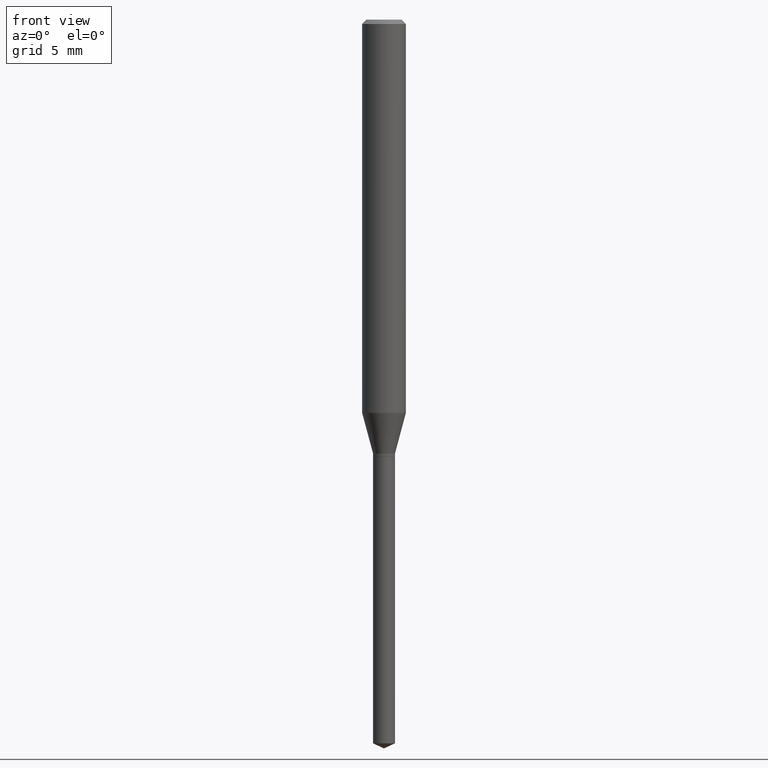
[diagram: clean part render]
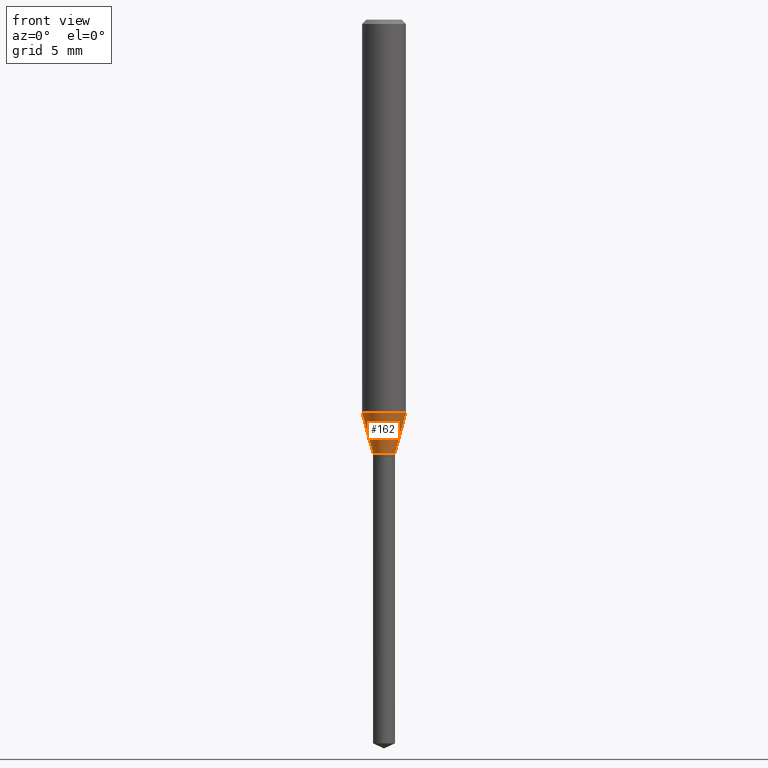
[diagram: same view with one face highlighted and labeled with its STEP entity id]
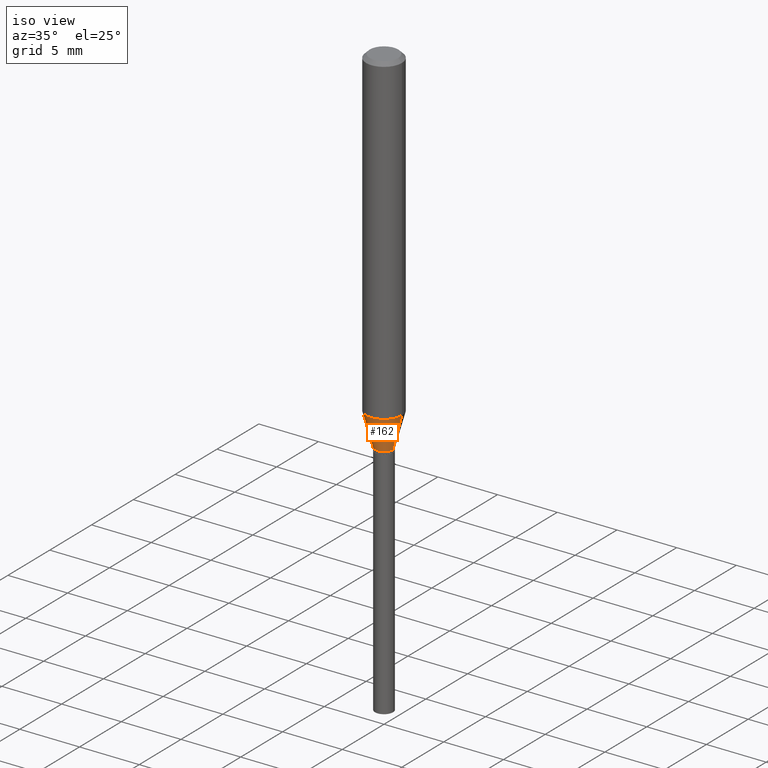
[diagram: same view with one face highlighted and labeled with its STEP entity id]
A machine part, front view. The second image highlights one B-rep face of the part: STEP entity #162.
A second angle (iso view) of the same face is appended — the face is thin or edge-on in the first view.
In plain terms, the highlighted conical surface has half-angle 15 deg.
Its self-contained STEP definition (entity closure, byte-faithful):
#3 = LINE ( 'NONE', #391, #469 ) ;
#48 = CONICAL_SURFACE ( 'NONE', #341, 0.02955000000000001029, 0.2617993877991501295 ) ;
#76 = CARTESIAN_POINT ( 'NONE',  ( 0.02955000000000001029, -4.299060972517564294E-15, -1.172199999999999909 ) ) ;
#113 = DIRECTION ( 'NONE',  ( 1.000000000000000000, -6.982962677686259611E-15, 0.000000000000000000 ) ) ;
#119 = CIRCLE ( 'NONE', #485, 0.05905000000000013710 ) ;
#120 = VERTEX_POINT ( 'NONE', #123 ) ;
#123 = CARTESIAN_POINT ( 'NONE',  ( -0.02955000000000001029, -3.897413268597965956E-15, -1.172199999999999909 ) ) ;
#147 = DIRECTION ( 'NONE',  ( -2.445468806185136597E-29, 3.491481338843145583E-15, 1.000000000000000000 ) ) ;
#162 = ADVANCED_FACE ( 'NONE', ( #340 ), #48, .T. ) ;
#170 = ORIENTED_EDGE ( 'NONE', *, *, #256, .F. ) ;
#177 = EDGE_LOOP ( 'NONE', ( #170, #254, #247, #394 ) ) ;
#185 = DIRECTION ( 'NONE',  ( 1.000000000000000000, -6.982962677686259611E-15, 0.000000000000000000 ) ) ;
#197 = DIRECTION ( 'NONE',  ( -2.445468806185136597E-29, 3.491481338843145583E-15, 1.000000000000000000 ) ) ;
#206 = VERTEX_POINT ( 'NONE', #465 ) ;
#227 = DIRECTION ( 'NONE',  ( 0.2588190451025214611, 1.565188264969621573E-15, 0.9659258262890682012 ) ) ;
#236 = DIRECTION ( 'NONE',  ( -2.445468806185136597E-29, 3.491481338843145583E-15, 1.000000000000000000 ) ) ;
#247 = ORIENTED_EDGE ( 'NONE', *, *, #463, .T. ) ;
#254 = ORIENTED_EDGE ( 'NONE', *, *, #482, .T. ) ;
#256 = EDGE_CURVE ( 'NONE', #120, #385, #3, .T. ) ;
#266 = LINE ( 'NONE', #76, #381 ) ;
#282 = DIRECTION ( 'NONE',  ( -0.2588190451025214611, 5.211531920934551042E-15, 0.9659258262890682012 ) ) ;
#312 = CARTESIAN_POINT ( 'NONE',  ( 2.597343426536488625E-29, -3.708318045759818038E-15, -1.062104501176717841 ) ) ;
#314 = EDGE_CURVE ( 'NONE', #385, #361, #119, .T. ) ;
#337 = CARTESIAN_POINT ( 'NONE',  ( 0.05905000000000013710, -4.120661991877192958E-15, -1.062104501176717841 ) ) ;
#340 = FACE_OUTER_BOUND ( 'NONE', #177, .T. ) ;
#341 = AXIS2_PLACEMENT_3D ( 'NONE', #483, #147, #185 ) ;
#348 = CIRCLE ( 'NONE', #362, 0.02955000000000001029 ) ;
#353 = DIRECTION ( 'NONE',  ( 1.000000000000000000, -6.982962677686264344E-15, 0.000000000000000000 ) ) ;
#361 = VERTEX_POINT ( 'NONE', #337 ) ;
#362 = AXIS2_PLACEMENT_3D ( 'NONE', #456, #236, #113 ) ;
#378 = CARTESIAN_POINT ( 'NONE',  ( -0.05905000000000013710, -3.288742560293478151E-15, -1.062104501176717841 ) ) ;
#381 = VECTOR ( 'NONE', #227, 39.37007874015747433 ) ;
#385 = VERTEX_POINT ( 'NONE', #378 ) ;
#391 = CARTESIAN_POINT ( 'NONE',  ( -0.02955000000000001029, -3.882749046974825326E-15, -1.172199999999999909 ) ) ;
#394 = ORIENTED_EDGE ( 'NONE', *, *, #314, .F. ) ;
#456 = CARTESIAN_POINT ( 'NONE',  ( 2.866578534610217158E-29, -4.092714425391935472E-15, -1.172199999999999909 ) ) ;
#463 = EDGE_CURVE ( 'NONE', #206, #361, #266, .T. ) ;
#465 = CARTESIAN_POINT ( 'NONE',  ( 0.02955000000000001029, -4.299060972517564294E-15, -1.172199999999999909 ) ) ;
#469 = VECTOR ( 'NONE', #282, 39.37007874015747433 ) ;
#482 = EDGE_CURVE ( 'NONE', #120, #206, #348, .T. ) ;
#483 = CARTESIAN_POINT ( 'NONE',  ( 2.866578534610217158E-29, -4.092714425391935472E-15, -1.172199999999999909 ) ) ;
#485 = AXIS2_PLACEMENT_3D ( 'NONE', #312, #197, #353 ) ;